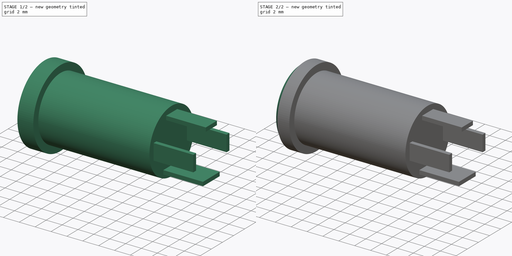
[diagram: build sequence overview — one tinted view per stage of 2, left to right]
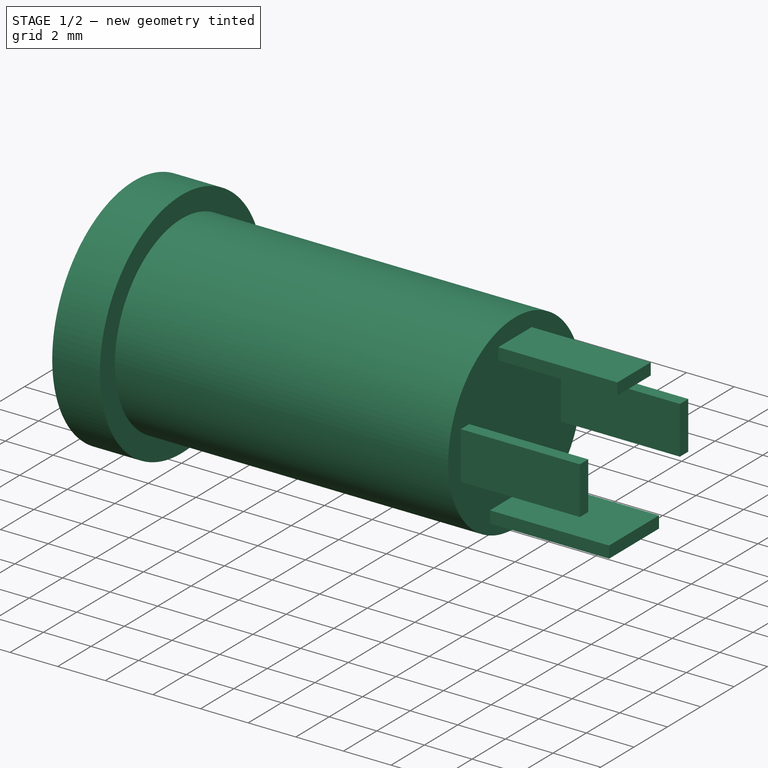
[diagram: stage 1 of 2 — iso view after this stage's code; geometry added in this stage tinted green]
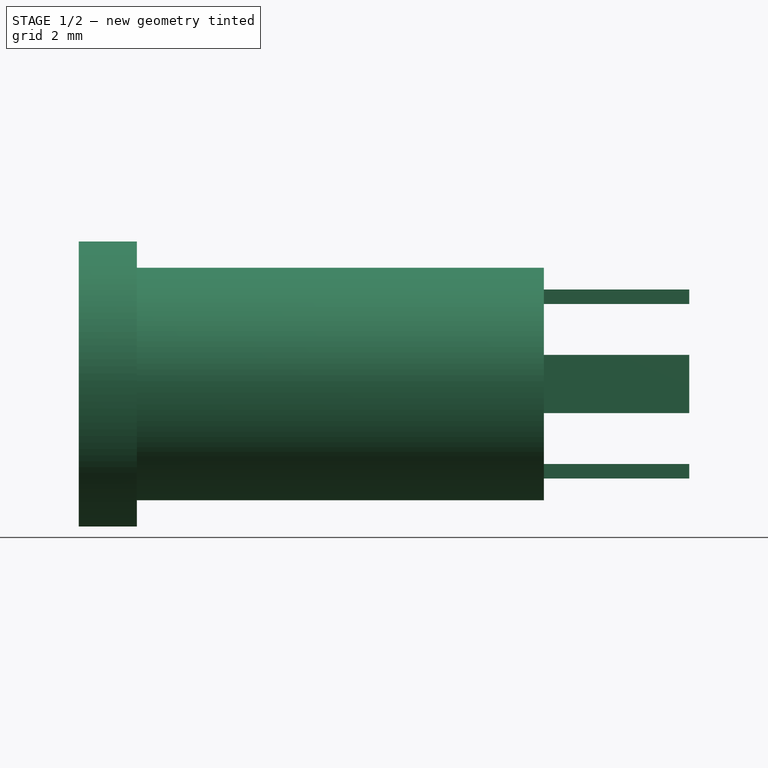
[diagram: stage 1 of 2 — front view after this stage's code; geometry added in this stage tinted green]
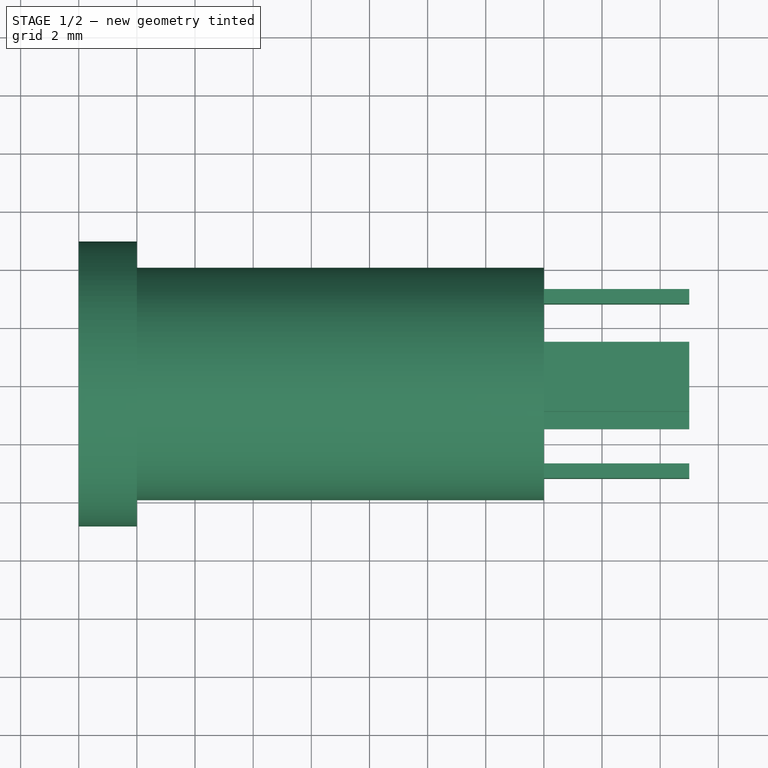
[diagram: stage 1 of 2 — top view after this stage's code; geometry added in this stage tinted green]
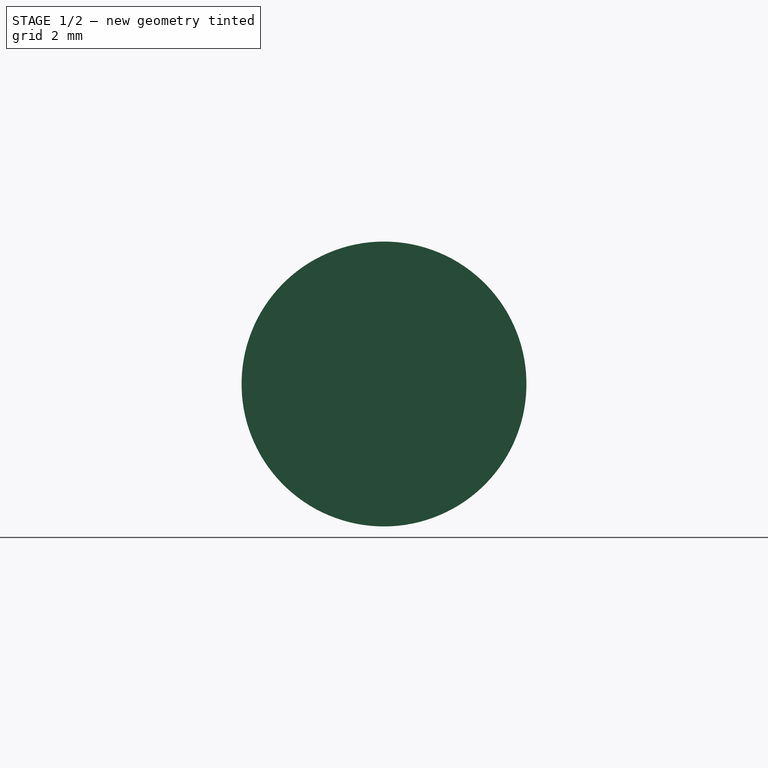
[diagram: stage 1 of 2 — right view after this stage's code; geometry added in this stage tinted green]
FCSTD DOCUMENT  (FreeCAD 0.20R28730 (Git))
Label: Connector Minijack MJ-064H
License: All rights reserved
LicenseURL: http://en.wikipedia.org/wiki/All_rights_reserved
objects: Sketcher::SketchObject×3, PartDesign::Revolution×1, PartDesign::Pad×1, PartDesign::Pocket×1, PartDesign::Chamfer×1, PartDesign::CoordinateSystem×1, PartDesign::Body×1
note: 13 computed .brp shape members not serialized (recipe doc carries the construction recipe); baked Part::Feature solids carry a one-line shape summary decoded from their .brp

FEATURE [Sketcher::SketchObject] Sketch
  FullyConstrained = true
  MapMode = 5
  Placement = pos=(0,0,0) rot=(1,0,0;1.5708rad)
  Support = -> [XZ_Plane]
  sketch-geometry (6):
    g0: LineSegment StartX=0 StartY=0 StartZ=0 EndX=0 EndY=4.9 EndZ=0
    g1: LineSegment StartX=0 StartY=4.9 StartZ=0 EndX=2 EndY=4.9 EndZ=0
    g2: LineSegment StartX=2 StartY=4.9 StartZ=0 EndX=2 EndY=4 EndZ=0
    g3: LineSegment StartX=2 StartY=4 StartZ=0 EndX=16 EndY=4 EndZ=0
    g4: LineSegment StartX=16 StartY=4 StartZ=0 EndX=16 EndY=0 EndZ=0
    g5: LineSegment StartX=16 StartY=0 StartZ=0 EndX=0 EndY=0 EndZ=0
  constraints (17):
    c: Coincident(g-1,g0)
    c: PointOnObject(g0,g-2)
    c: Coincident(g0,g1)
    c: Horizontal(g1)
    c: Coincident(g1,g2)
    c: Coincident(g2,g3)
    c: Horizontal(g3)
    c: Coincident(g3,g4)
    c: Coincident(g4,g5)
    c: Coincident(g5,g0)
    c: Horizontal(g5)
    c: Vertical(g2)
    c: DistanceX(g5,g5) = 16
    c: Vertical(g4)
    c: DistanceY(g0,g0) = 4.9
    c: DistanceY(g4,g4) = 4
    c: DistanceX(g1,g1) = 2
FEATURE [PartDesign::Revolution] Revolution
  Angle = 360
  Axis = (1,0,0)
  Base = (0,0,0)
  Placement = pos=(0,0,0) rot=(1,0,0;1.5708rad)
  Profile = -> Sketch
  ReferenceAxis = -> X_Axis
  Refine = true
  Reversed = true
FEATURE [Sketcher::SketchObject] Sketch001
  AttachmentOffset = pos=(0,0,16) rot=(0,0,1;0rad)
  FullyConstrained = true
  MapMode = 5
  Placement = pos=(16,-3.6e-15,3.6e-15) rot=(0.57735,0.57735,0.57735;2.0944rad)
  Support = -> [YZ_Plane]
  sketch-geometry (20):
    g0: LineSegment StartX=-1.5 StartY=-2.75 StartZ=0 EndX=-1.5 EndY=-3.25 EndZ=0
    g1: LineSegment StartX=-1.5 StartY=-3.25 StartZ=0 EndX=1.5 EndY=-3.25 EndZ=0
    g2: LineSegment StartX=1.5 StartY=-3.25 StartZ=0 EndX=1.5 EndY=-2.75 EndZ=0
    g3: LineSegment StartX=1.5 StartY=-2.75 StartZ=0 EndX=-1.5 EndY=-2.75 EndZ=0
    g4: GeomPoint X=0 Y=-3 Z=0
    g5: LineSegment StartX=-1 StartY=3.25 StartZ=0 EndX=-1 EndY=2.75 EndZ=0
    g6: LineSegment StartX=-1 StartY=2.75 StartZ=0 EndX=1 EndY=2.75 EndZ=0
    g7: LineSegment StartX=1 StartY=2.75 StartZ=0 EndX=1 EndY=3.25 EndZ=0
    g8: LineSegment StartX=1 StartY=3.25 StartZ=0 EndX=-1 EndY=3.25 EndZ=0
    g9: GeomPoint X=0 Y=3 Z=0
    g10: LineSegment StartX=3.25 StartY=-1 StartZ=0 EndX=3.25 EndY=1 EndZ=0
    g11: LineSegment StartX=3.25 StartY=1 StartZ=0 EndX=2.75 EndY=1 EndZ=0
    g12: LineSegment StartX=2.75 StartY=1 StartZ=0 EndX=2.75 EndY=-1 EndZ=0
    g13: LineSegment StartX=2.75 StartY=-1 StartZ=0 EndX=3.25 EndY=-1 EndZ=0
    g14: GeomPoint X=3 Y=0 Z=0
    g15: LineSegment StartX=-2.75 StartY=-1 StartZ=0 EndX=-2.75 EndY=1 EndZ=0
    g16: LineSegment StartX=-2.75 StartY=1 StartZ=0 EndX=-3.25 EndY=1 EndZ=0
    g17: LineSegment StartX=-3.25 StartY=1 StartZ=0 EndX=-3.25 EndY=-1 EndZ=0
    g18: LineSegment StartX=-3.25 StartY=-1 StartZ=0 EndX=-2.75 EndY=-1 EndZ=0
    g19: GeomPoint X=-3 Y=0 Z=0
  constraints (50):
    c: Coincident(g0,g1)
    c: Coincident(g1,g2)
    c: Coincident(g2,g3)
    c: Coincident(g3,g0)
    c: Horizontal(g1)
    c: Horizontal(g3)
    c: Vertical(g0)
    c: Vertical(g2)
    c: Symmetric(g1,g0,g4)
    c: PointOnObject(g4,g-2)
    c: Coincident(g5,g6)
    c: Coincident(g6,g7)
    c: Coincident(g7,g8)
    c: Coincident(g8,g5)
    c: Horizontal(g6)
    c: Horizontal(g8)
    c: Vertical(g5)
    c: Vertical(g7)
    c: Symmetric(g6,g5,g9)
    c: Coincident(g10,g11)
    c: Coincident(g11,g12)
    c: Coincident(g12,g13)
    c: Coincident(g13,g10)
    c: Horizontal(g11)
    c: Horizontal(g13)
    c: Vertical(g10)
    c: Vertical(g12)
    c: Symmetric(g11,g10,g14)
    c: PointOnObject(g14,g-1)
    c: Coincident(g15,g16)
    c: Coincident(g16,g17)
    c: Coincident(g17,g18)
    c: Coincident(g18,g15)
    c: Horizontal(g16)
    c: Horizontal(g18)
    c: Vertical(g15)
    c: Vertical(g17)
    c: Symmetric(g16,g15,g19)
    c: Symmetric(g19,g14,g-2)
    c: Symmetric(g9,g4,g-1)
    c: Equal(g16,g11)
    c: Equal(g11,g7)
    c: Equal(g7,g2)
    c: Equal(g12,g6)
    c: Equal(g6,g15)
    c: DistanceX(g19,g14) = 6
    c: DistanceY(g4,g9) = 6
    c: DistanceX(g8,g8) = 2
    c: DistanceX(g1,g1) = 3
    c: DistanceY(g0,g0) = 0.5
FEATURE [PartDesign::Pad] Pad
  BaseFeature = -> Revolution
  Direction = (1,-2e-16,3e-16)
  Length = 5
  Length2 = 10
  Placement = pos=(0,0,0) rot=(1,0,0;1.5708rad)
  Profile = -> Sketch001
  ReferenceAxis = -> Sketch001 [N_Axis]
  Refine = true
  Type = 0
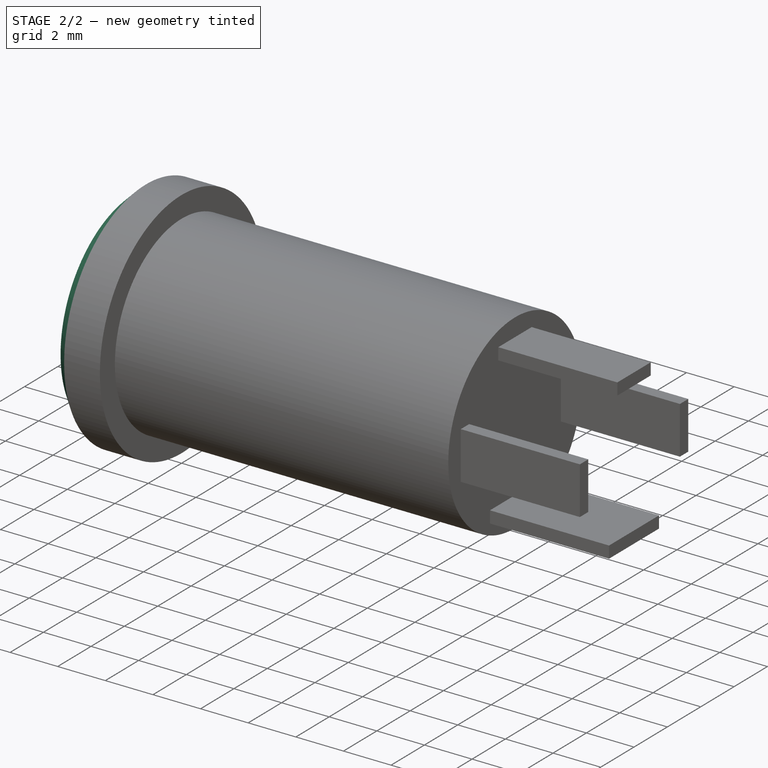
[diagram: stage 2 of 2 — iso view after this stage's code; geometry added in this stage tinted green]
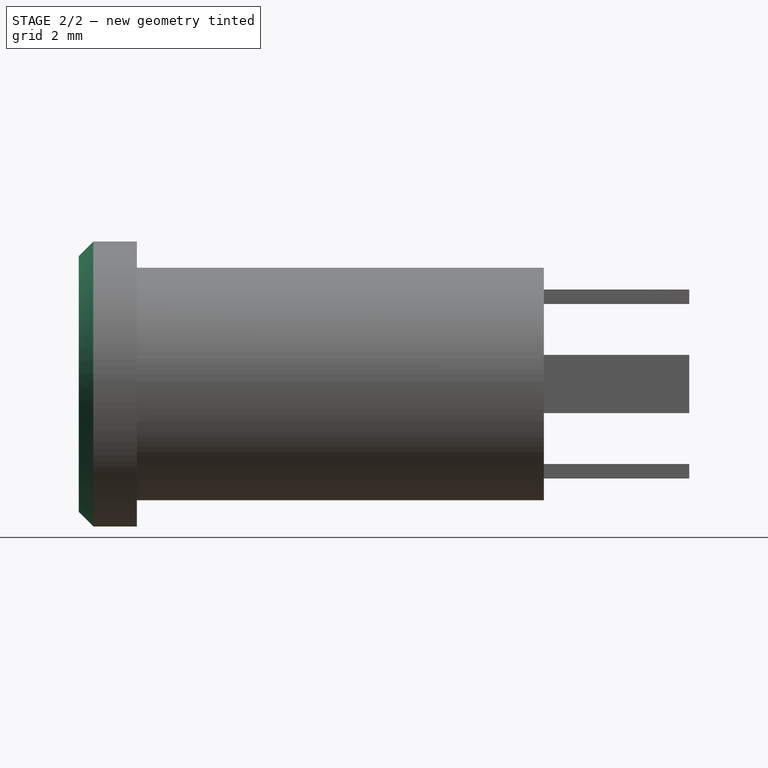
[diagram: stage 2 of 2 — front view after this stage's code; geometry added in this stage tinted green]
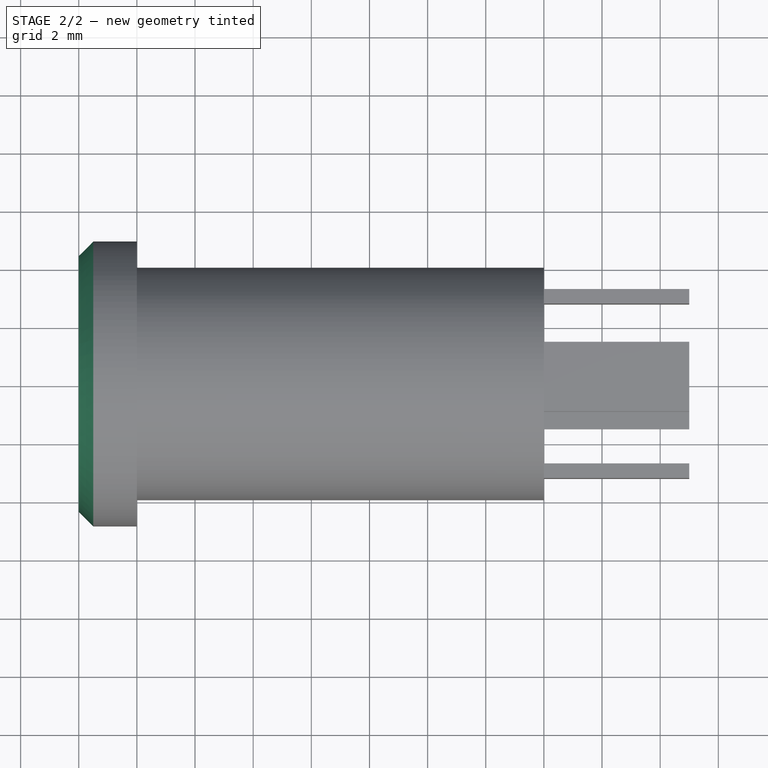
[diagram: stage 2 of 2 — top view after this stage's code; geometry added in this stage tinted green]
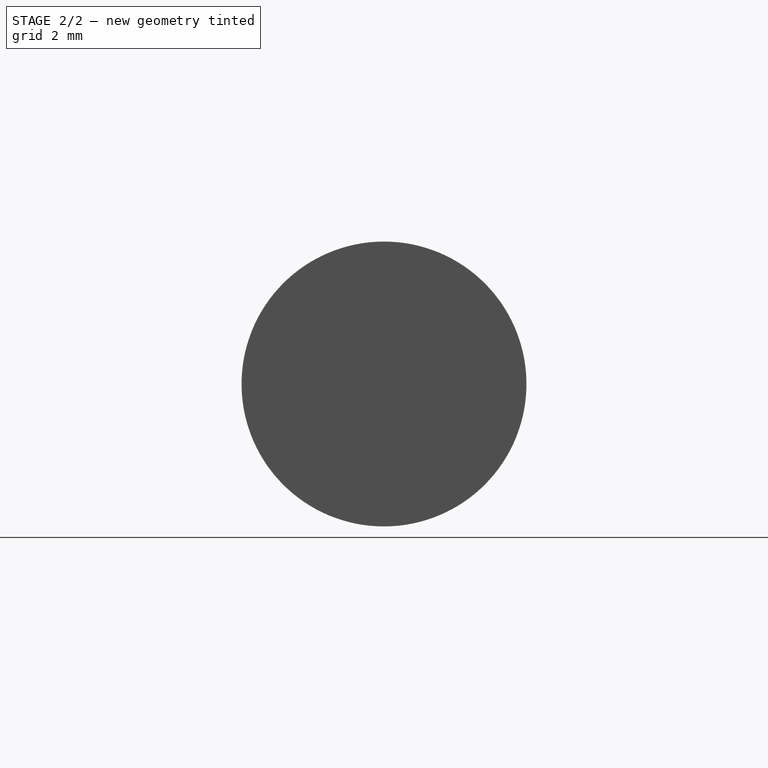
[diagram: stage 2 of 2 — right view after this stage's code; geometry added in this stage tinted green]
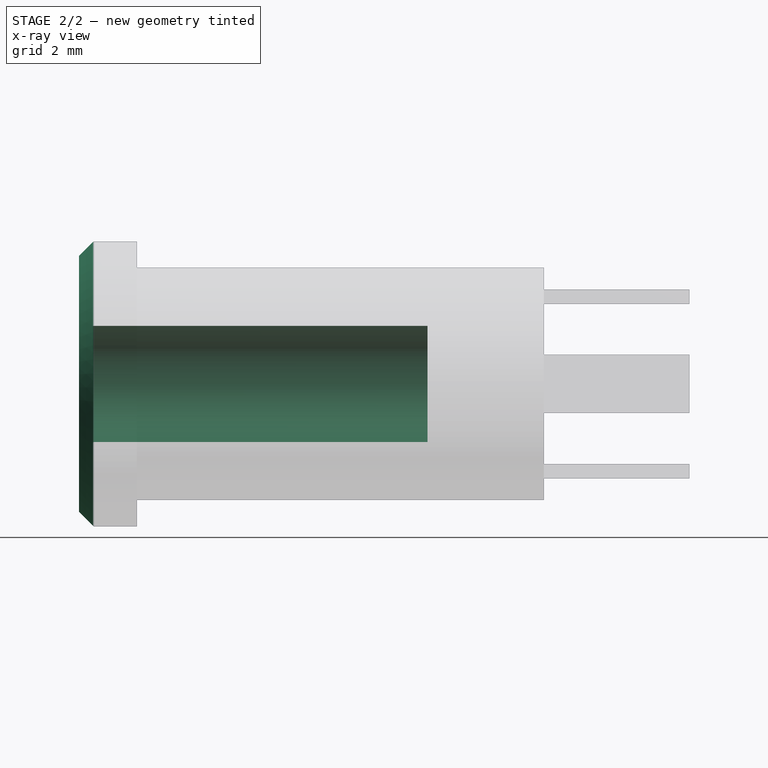
[diagram: stage 2 of 2 — x-ray composite at the front view; earlier geometry ghosted, this stage's added geometry solid]
FEATURE [Sketcher::SketchObject] Sketch002
  FullyConstrained = true
  MapMode = 5
  Placement = pos=(0,0,0) rot=(0.57735,0.57735,0.57735;2.0944rad)
  Support = -> [YZ_Plane]
  sketch-geometry (1):
    g0: Circle CenterX=0 CenterY=0 CenterZ=0 NormalX=0 NormalY=0 NormalZ=1 AngleXU=0 Radius=2
  constraints (2):
    c: Coincident(g0,g-1)
    c: Diameter(g0) = 4
FEATURE [PartDesign::Pocket] Pocket
  BaseFeature = -> Pad
  Direction = (-1,2e-16,-3e-16)
  Length = 12
  Length2 = 5
  Placement = pos=(0,0,0) rot=(1,0,0;1.5708rad)
  Profile = -> Sketch002
  ReferenceAxis = -> Sketch002 [N_Axis]
  Refine = true
  Reversed = true
  Type = 0
FEATURE [PartDesign::Chamfer] Chamfer
  Angle = 45
  Base = -> Pocket [Face1]
  BaseFeature = -> Pocket
  ChamferType = 0
  FlipDirection = false
  Placement = pos=(0,0,0) rot=(1,0,0;1.5708rad)
  Refine = true
  Size = 0.5
  Size2 = 1
  SupportTransform = false
  UseAllEdges = false
FEATURE [PartDesign::CoordinateSystem] LCS_1  label="LCS_Connector_Minijack"
  AttacherType = Attacher::AttachEngine3D
  MapMode = 11
  Placement = pos=(2,0,0) rot=(0.57735,0.57735,-0.57735;4.18879rad)
  Support = -> [Chamfer]
FEATURE [PartDesign::Body] Body  label="Connector_Minijack_MJ-064H"
  Group = -> [Sketch,Revolution,Sketch001,Pad,Sketch002,Pocket,Chamfer,LCS_1]
  Origin = -> Origin
  Tip = -> Chamfer
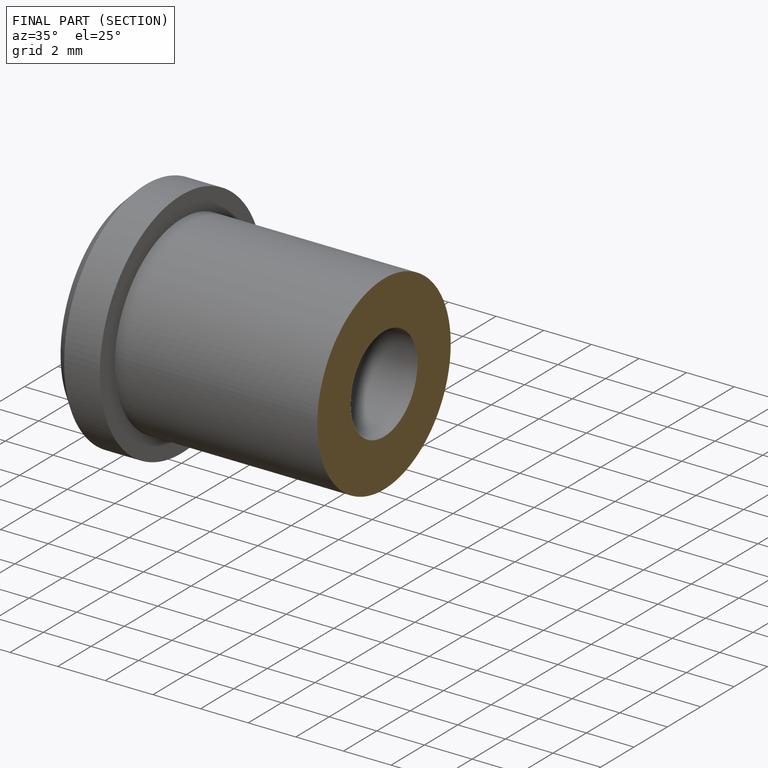
[diagram: finished part — half-section view (interior)]
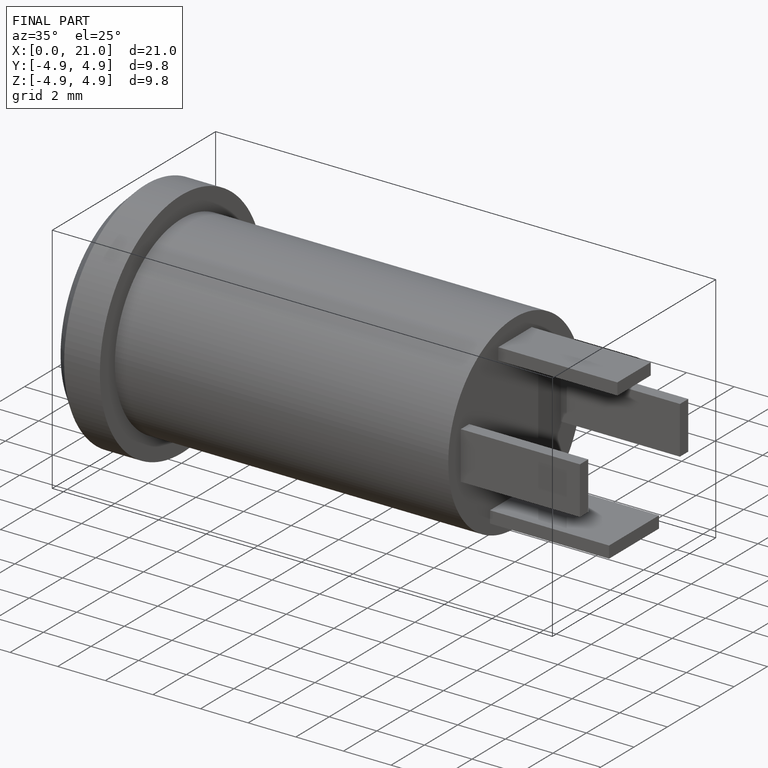
[diagram: finished part — iso view with bounding-box wireframe]
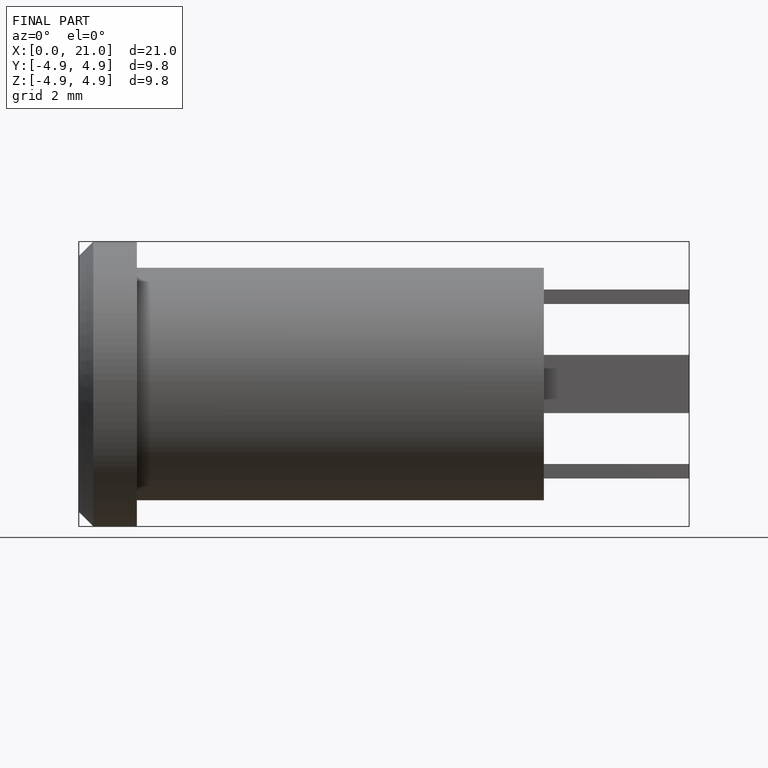
[diagram: finished part — front view with bounding-box wireframe]
